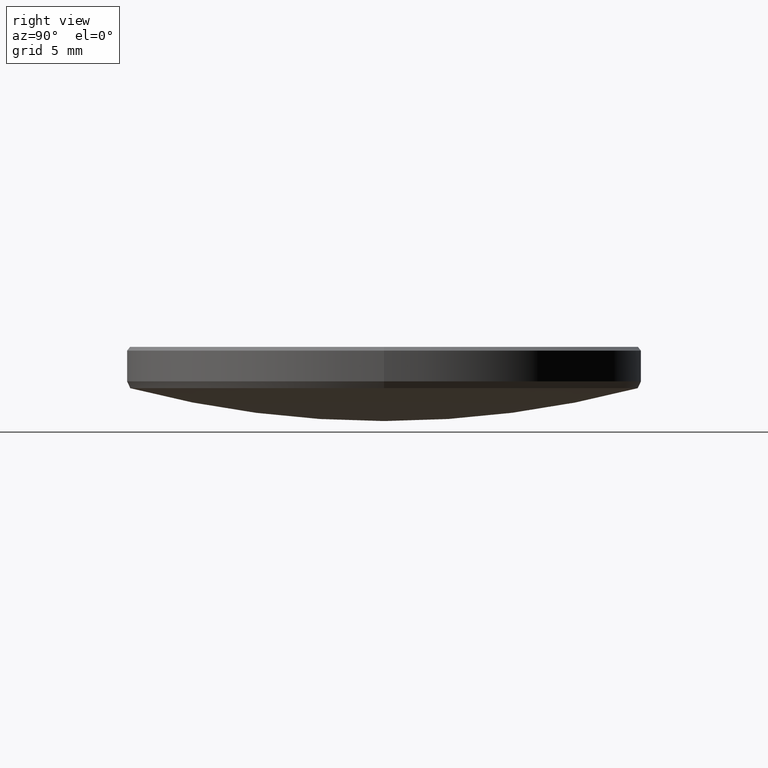
[diagram: clean part render]
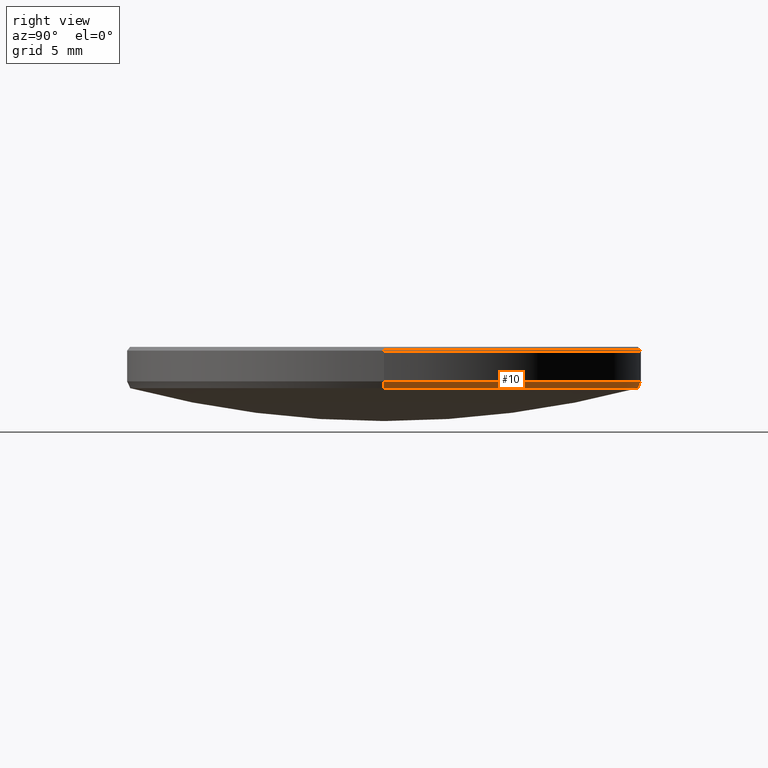
[diagram: same view with one face highlighted and labeled with its STEP entity id]
A machine part, right view. The second image highlights one B-rep face of the part: STEP entity #10.
In plain terms, the highlighted conical surface has half-angle 29.997 deg.
Its self-contained STEP definition (entity closure, byte-faithful):
#10 = ADVANCED_FACE ( 'NONE', ( #116 ), #166, .T. ) ;
#28 = CARTESIAN_POINT ( 'NONE',  ( 0.000000000000000000, 0.000000000000000000, 4.282866881517001900 ) ) ;
#37 = VECTOR ( 'NONE', #141, 1000.000000000000000 ) ;
#39 = CARTESIAN_POINT ( 'NONE',  ( 12.69999999999999929, 1.555301434917138433E-15, 4.282866881517001900 ) ) ;
#43 = EDGE_LOOP ( 'NONE', ( #293, #136, #268, #212, #163 ) ) ;
#61 = EDGE_CURVE ( 'NONE', #264, #67, #188, .T. ) ;
#64 = VERTEX_POINT ( 'NONE', #39 ) ;
#67 = VERTEX_POINT ( 'NONE', #221 ) ;
#75 = DIRECTION ( 'NONE',  ( 1.000000000000000000, 0.000000000000000000, 0.000000000000000000 ) ) ;
#97 = AXIS2_PLACEMENT_3D ( 'NONE', #28, #106, #206 ) ;
#105 = CIRCLE ( 'NONE', #279, 12.50710445798774728 ) ;
#106 = DIRECTION ( 'NONE',  ( -0.000000000000000000, -0.000000000000000000, 1.000000000000000000 ) ) ;
#116 = FACE_OUTER_BOUND ( 'NONE', #43, .T. ) ;
#124 = DIRECTION ( 'NONE',  ( 0.4999572784161532835, 0.000000000000000000, 0.8660500676974242085 ) ) ;
#127 = CARTESIAN_POINT ( 'NONE',  ( -12.69999999999999929, 0.000000000000000000, 4.282866881517001900 ) ) ;
#136 = ORIENTED_EDGE ( 'NONE', *, *, #156, .T. ) ;
#139 = DIRECTION ( 'NONE',  ( 1.000000000000000000, 0.000000000000000000, 0.000000000000000000 ) ) ;
#141 = DIRECTION ( 'NONE',  ( -0.4999572784161532835, 6.122710807227642125E-17, 0.8660500676974242085 ) ) ;
#156 = EDGE_CURVE ( 'NONE', #183, #198, #298, .T. ) ;
#158 = CARTESIAN_POINT ( 'NONE',  ( 0.000000000000000000, 0.000000000000000000, 4.282866881517001900 ) ) ;
#163 = ORIENTED_EDGE ( 'NONE', *, *, #61, .F. ) ;
#166 = CONICAL_SURFACE ( 'NONE', #250, 12.69999999999999929, 0.5235494456648849271 ) ;
#167 = AXIS2_PLACEMENT_3D ( 'NONE', #294, #270, #139 ) ;
#178 = CARTESIAN_POINT ( 'NONE',  ( 0.000000000000000000, 0.000000000000000000, 3.948723936848863580 ) ) ;
#183 = VERTEX_POINT ( 'NONE', #249 ) ;
#188 = CIRCLE ( 'NONE', #167, 12.50710445798774728 ) ;
#189 = VECTOR ( 'NONE', #124, 1000.000000000000000 ) ;
#195 = DIRECTION ( 'NONE',  ( 0.000000000000000000, 0.000000000000000000, -1.000000000000000000 ) ) ;
#198 = VERTEX_POINT ( 'NONE', #127 ) ;
#206 = DIRECTION ( 'NONE',  ( -1.000000000000000000, 0.000000000000000000, 0.000000000000000000 ) ) ;
#210 = EDGE_CURVE ( 'NONE', #67, #64, #247, .T. ) ;
#212 = ORIENTED_EDGE ( 'NONE', *, *, #210, .F. ) ;
#221 = CARTESIAN_POINT ( 'NONE',  ( 12.50710445798774728, 0.000000000000000000, 3.948723936848863580 ) ) ;
#247 = LINE ( 'NONE', #275, #189 ) ;
#249 = CARTESIAN_POINT ( 'NONE',  ( -12.50710445798774728, 1.543489989512383738E-15, 3.948723936848863580 ) ) ;
#250 = AXIS2_PLACEMENT_3D ( 'NONE', #158, #265, #316 ) ;
#255 = EDGE_CURVE ( 'NONE', #183, #264, #105, .T. ) ;
#264 = VERTEX_POINT ( 'NONE', #307 ) ;
#265 = DIRECTION ( 'NONE',  ( -0.000000000000000000, -0.000000000000000000, 1.000000000000000000 ) ) ;
#268 = ORIENTED_EDGE ( 'NONE', *, *, #301, .F. ) ;
#270 = DIRECTION ( 'NONE',  ( 0.000000000000000000, 0.000000000000000000, -1.000000000000000000 ) ) ;
#274 = CARTESIAN_POINT ( 'NONE',  ( -12.69999999999999929, 1.555301434917138433E-15, 4.282866881517001900 ) ) ;
#275 = CARTESIAN_POINT ( 'NONE',  ( 12.69999999999999929, 0.000000000000000000, 4.282866881517001900 ) ) ;
#279 = AXIS2_PLACEMENT_3D ( 'NONE', #178, #195, #75 ) ;
#293 = ORIENTED_EDGE ( 'NONE', *, *, #255, .F. ) ;
#294 = CARTESIAN_POINT ( 'NONE',  ( 0.000000000000000000, 0.000000000000000000, 3.948723936848863580 ) ) ;
#298 = LINE ( 'NONE', #274, #37 ) ;
#301 = EDGE_CURVE ( 'NONE', #64, #198, #305, .T. ) ;
#305 = CIRCLE ( 'NONE', #97, 12.69999999999999929 ) ;
#307 = CARTESIAN_POINT ( 'NONE',  ( 0.000000000000000000, 12.50710445798775083, 3.948723936848860028 ) ) ;
#316 = DIRECTION ( 'NONE',  ( 1.000000000000000000, 0.000000000000000000, 0.000000000000000000 ) ) ;